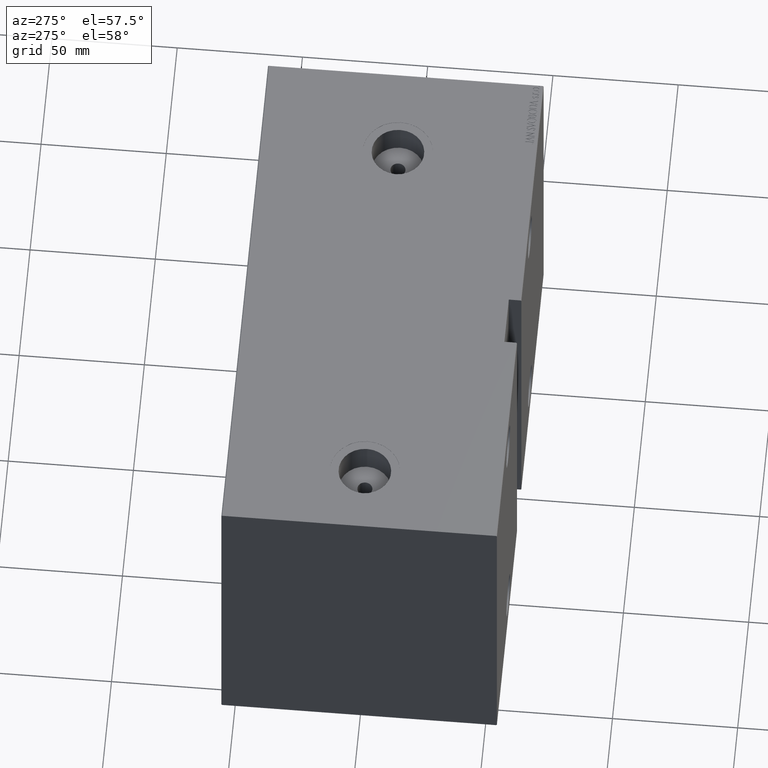
[diagram: clean part render]
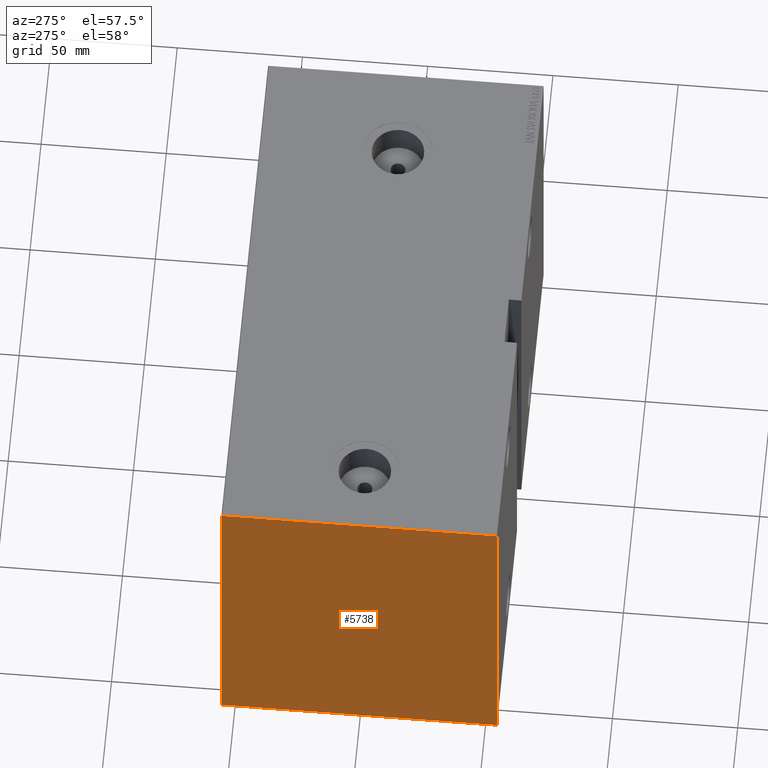
[diagram: same view with one face highlighted and labeled with its STEP entity id]
A machine part, auxiliary view. The second image highlights one B-rep face of the part: STEP entity #5738.
In plain terms, the highlighted planar face has unit normal (-1, 0, 0).
Its self-contained STEP definition (entity closure, byte-faithful):
#489 = DIRECTION ( 'NONE',  ( 0.000000000000000000, 0.000000000000000000, -1.000000000000000000 ) ) ;
#1471 = EDGE_CURVE ( 'NONE', #26390, #4237, #14866, .T. ) ;
#3214 = CARTESIAN_POINT ( 'NONE',  ( 213.0000000000000000, 62.35000000000378861, 62.34999999999514131 ) ) ;
#3254 = DIRECTION ( 'NONE',  ( 0.000000000000000000, -1.982541115402065110E-16, 1.000000000000000000 ) ) ;
#4237 = VERTEX_POINT ( 'NONE', #31770 ) ;
#4424 = LINE ( 'NONE', #35176, #14965 ) ;
#5738 = ADVANCED_FACE ( 'NONE', ( #19810 ), #33488, .T. ) ;
#6000 = ORIENTED_EDGE ( 'NONE', *, *, #26223, .T. ) ;
#6631 = CARTESIAN_POINT ( 'NONE',  ( 213.0000000000000000, 54.69999999999999574, 70.00000000000000000 ) ) ;
#7896 = DIRECTION ( 'NONE',  ( 0.000000000000000000, -0.7071067811865474617, -0.7071067811865474617 ) ) ;
#9266 = CARTESIAN_POINT ( 'NONE',  ( 213.0000000000000000, -54.99999999999999289, -70.00000000000001421 ) ) ;
#10498 = VERTEX_POINT ( 'NONE', #26896 ) ;
#11534 = VECTOR ( 'NONE', #3254, 1000.000000000000000 ) ;
#12203 = VECTOR ( 'NONE', #26960, 999.9999999999998863 ) ;
#12383 = LINE ( 'NONE', #14872, #17852 ) ;
#12712 = CARTESIAN_POINT ( 'NONE',  ( 213.0000000000000000, 55.00000000000002132, -70.00000000000001421 ) ) ;
#13199 = ORIENTED_EDGE ( 'NONE', *, *, #39145, .T. ) ;
#13904 = VECTOR ( 'NONE', #33258, 1000.000000000000000 ) ;
#14866 = LINE ( 'NONE', #42202, #43484 ) ;
#14872 = CARTESIAN_POINT ( 'NONE',  ( 213.0000000000000000, 62.34999999999748610, -62.35000000000324860 ) ) ;
#14965 = VECTOR ( 'NONE', #30707, 1000.000000000000000 ) ;
#16611 = VERTEX_POINT ( 'NONE', #6631 ) ;
#17072 = ORIENTED_EDGE ( 'NONE', *, *, #21346, .T. ) ;
#17337 = ORIENTED_EDGE ( 'NONE', *, *, #34149, .T. ) ;
#17852 = VECTOR ( 'NONE', #28549, 999.9999999999998863 ) ;
#19810 = FACE_OUTER_BOUND ( 'NONE', #25343, .T. ) ;
#20279 = LINE ( 'NONE', #3214, #26650 ) ;
#20512 = ORIENTED_EDGE ( 'NONE', *, *, #1471, .T. ) ;
#21346 = EDGE_CURVE ( 'NONE', #37851, #28259, #12383, .T. ) ;
#25343 = EDGE_LOOP ( 'NONE', ( #13199, #17072, #38442, #17337, #6000, #20512, #42127, #42793 ) ) ;
#25371 = LINE ( 'NONE', #39701, #38894 ) ;
#25810 = DIRECTION ( 'NONE',  ( 0.000000000000000000, 0.000000000000000000, -1.000000000000000000 ) ) ;
#25913 = LINE ( 'NONE', #39581, #12203 ) ;
#26223 = EDGE_CURVE ( 'NONE', #16611, #26390, #4424, .T. ) ;
#26315 = LINE ( 'NONE', #9266, #13904 ) ;
#26390 = VERTEX_POINT ( 'NONE', #43208 ) ;
#26613 = LINE ( 'NONE', #12712, #11534 ) ;
#26650 = VECTOR ( 'NONE', #33515, 1000.000000000000114 ) ;
#26896 = CARTESIAN_POINT ( 'NONE',  ( 213.0000000000000000, -54.99999999999999289, -69.70000000000000284 ) ) ;
#26960 = DIRECTION ( 'NONE',  ( -0.000000000000000000, 0.7071067811865149322, -0.7071067811865802133 ) ) ;
#28259 = VERTEX_POINT ( 'NONE', #37020 ) ;
#28549 = DIRECTION ( 'NONE',  ( -0.000000000000000000, 0.7071067811865802133, 0.7071067811865149322 ) ) ;
#29119 = AXIS2_PLACEMENT_3D ( 'NONE', #30127, #43797, #489 ) ;
#29818 = EDGE_CURVE ( 'NONE', #10498, #38678, #25913, .T. ) ;
#30127 = CARTESIAN_POINT ( 'NONE',  ( 213.0000000000000000, 0.000000000000000000, 0.000000000000000000 ) ) ;
#30660 = CARTESIAN_POINT ( 'NONE',  ( 213.0000000000000000, 54.69999999999999574, -70.00000000000001421 ) ) ;
#30707 = DIRECTION ( 'NONE',  ( 0.000000000000000000, -1.000000000000000000, -1.261617073437677999E-16 ) ) ;
#31102 = VERTEX_POINT ( 'NONE', #33257 ) ;
#31770 = CARTESIAN_POINT ( 'NONE',  ( 213.0000000000000000, -54.99999999999999289, 69.70000000000003126 ) ) ;
#32335 = EDGE_CURVE ( 'NONE', #28259, #31102, #26613, .T. ) ;
#33257 = CARTESIAN_POINT ( 'NONE',  ( 213.0000000000000000, 54.99999999999999289, 69.69999999999997442 ) ) ;
#33258 = DIRECTION ( 'NONE',  ( 0.000000000000000000, 1.000000000000000000, 0.000000000000000000 ) ) ;
#33488 = PLANE ( 'NONE',  #29119 ) ;
#33515 = DIRECTION ( 'NONE',  ( -0.000000000000000000, -0.7071067811864985009, 0.7071067811865965336 ) ) ;
#34149 = EDGE_CURVE ( 'NONE', #31102, #16611, #20279, .T. ) ;
#35176 = CARTESIAN_POINT ( 'NONE',  ( 213.0000000000000000, 54.99999999999999289, 70.00000000000000000 ) ) ;
#37020 = CARTESIAN_POINT ( 'NONE',  ( 213.0000000000000000, 55.00000000000002132, -69.70000000000003126 ) ) ;
#37615 = CARTESIAN_POINT ( 'NONE',  ( 213.0000000000000000, -54.69999999999999574, -70.00000000000001421 ) ) ;
#37851 = VERTEX_POINT ( 'NONE', #30660 ) ;
#38442 = ORIENTED_EDGE ( 'NONE', *, *, #32335, .T. ) ;
#38678 = VERTEX_POINT ( 'NONE', #37615 ) ;
#38894 = VECTOR ( 'NONE', #25810, 1000.000000000000000 ) ;
#39145 = EDGE_CURVE ( 'NONE', #38678, #37851, #26315, .T. ) ;
#39581 = CARTESIAN_POINT ( 'NONE',  ( 213.0000000000000000, -62.35000000000254516, -62.34999999999677556 ) ) ;
#39701 = CARTESIAN_POINT ( 'NONE',  ( 213.0000000000000000, -54.99999999999999289, 69.99999999999998579 ) ) ;
#41585 = EDGE_CURVE ( 'NONE', #4237, #10498, #25371, .T. ) ;
#42127 = ORIENTED_EDGE ( 'NONE', *, *, #41585, .T. ) ;
#42202 = CARTESIAN_POINT ( 'NONE',  ( 213.0000000000000000, -62.35000000000000853, 62.35000000000000853 ) ) ;
#42793 = ORIENTED_EDGE ( 'NONE', *, *, #29818, .T. ) ;
#43208 = CARTESIAN_POINT ( 'NONE',  ( 213.0000000000000000, -54.70000000000002416, 69.99999999999998579 ) ) ;
#43484 = VECTOR ( 'NONE', #7896, 1000.000000000000114 ) ;
#43797 = DIRECTION ( 'NONE',  ( 1.000000000000000000, 0.000000000000000000, 0.000000000000000000 ) ) ;